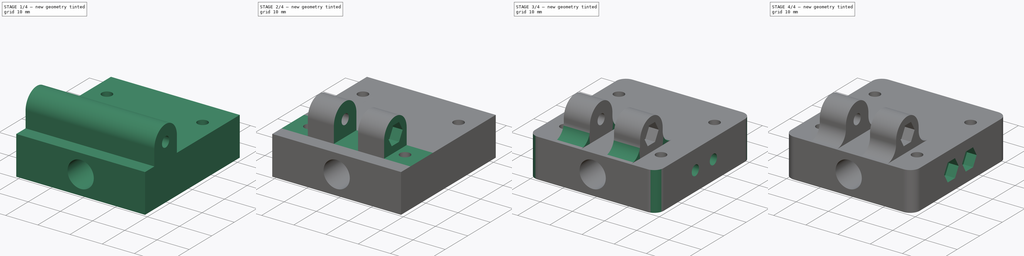
[diagram: build sequence overview — one tinted view per stage of 4, left to right]
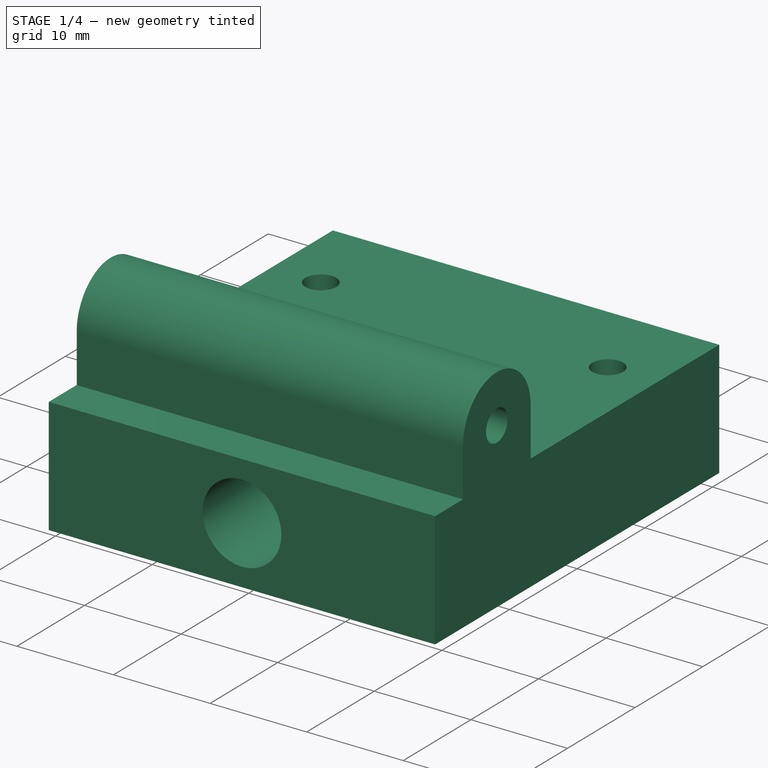
[diagram: stage 1 of 4 — iso view after this stage's code; geometry added in this stage tinted green]
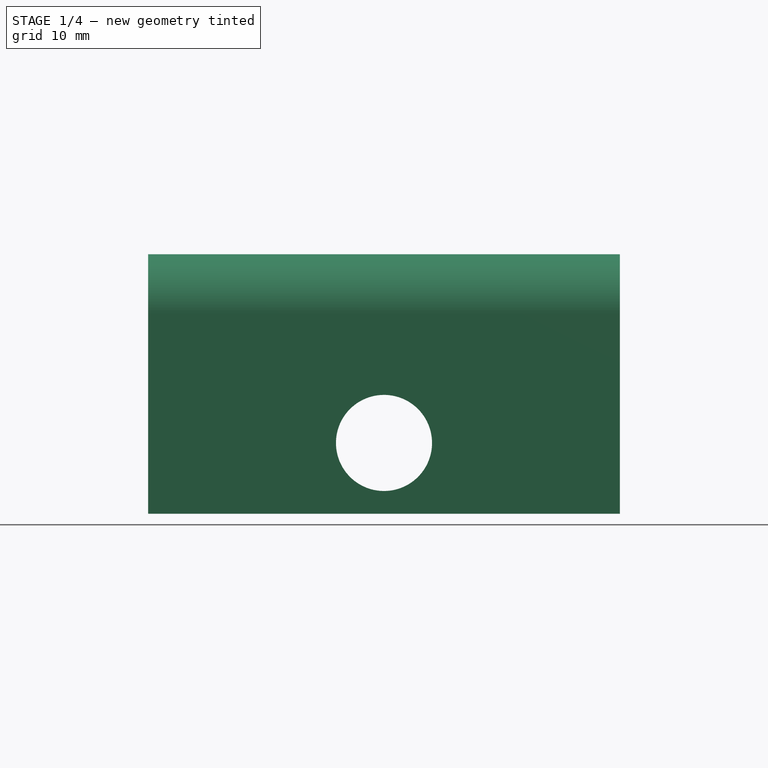
[diagram: stage 1 of 4 — front view after this stage's code; geometry added in this stage tinted green]
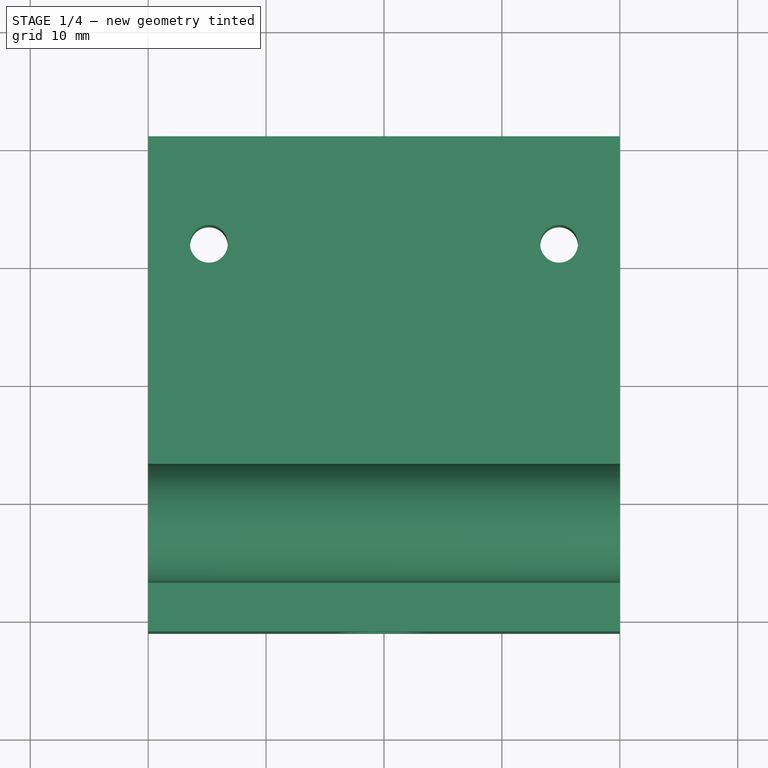
[diagram: stage 1 of 4 — top view after this stage's code; geometry added in this stage tinted green]
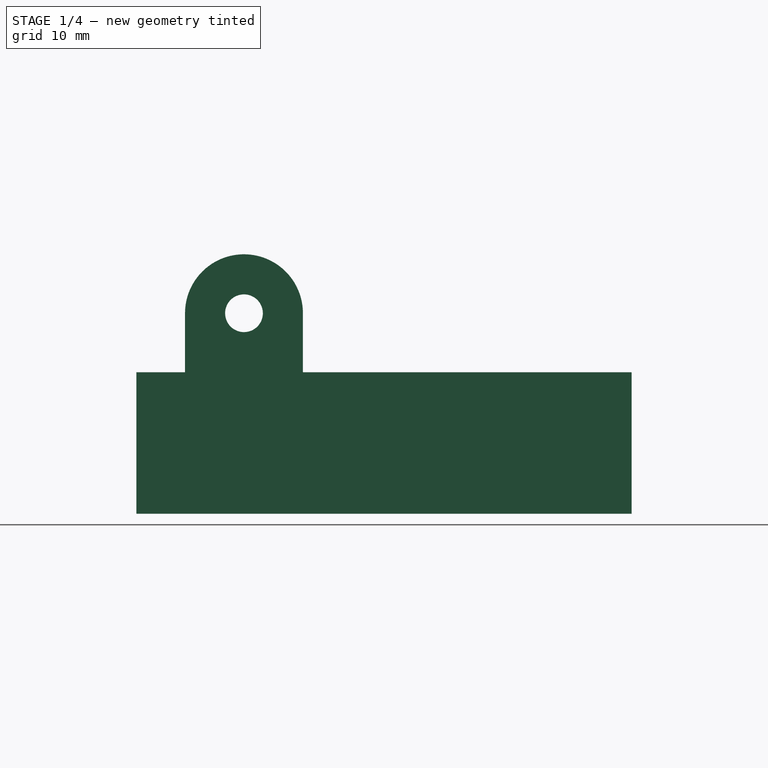
[diagram: stage 1 of 4 — right view after this stage's code; geometry added in this stage tinted green]
FCSTD DOCUMENT  (FreeCAD 0.20R29603 (Git))
Label: base-M8-bracket
License: All rights reserved
LicenseURL: http://en.wikipedia.org/wiki/All_rights_reserved
objects: Sketcher::SketchObject×10, PartDesign::Pocket×8, PartDesign::Pad×2, PartDesign::Fillet×2, PartDesign::Body×1
note: 35 computed .brp shape members not serialized (recipe doc carries the construction recipe); baked Part::Feature solids carry a one-line shape summary decoded from their .brp

FEATURE [Sketcher::SketchObject] Sketch
  FullyConstrained = true
  MapMode = 5
  Support = -> [XY_Plane]
  sketch-geometry (16):
    g0: LineSegment StartX=-20 StartY=21 StartZ=0 EndX=20 EndY=21 EndZ=0
    g1: LineSegment StartX=20 StartY=21 StartZ=0 EndX=20 EndY=-21 EndZ=0
    g2: LineSegment StartX=20 StartY=-21 StartZ=0 EndX=-20 EndY=-21 EndZ=0
    g3: LineSegment StartX=-20 StartY=-21 StartZ=0 EndX=-20 EndY=21 EndZ=0
    g4: LineSegment StartX=-14.85 StartY=11.875 StartZ=0 EndX=14.85 EndY=11.875 EndZ=0
    g5: LineSegment StartX=14.85 StartY=11.875 StartZ=0 EndX=14.85 EndY=-11.875 EndZ=0
    g6: LineSegment StartX=14.85 StartY=-11.875 StartZ=0 EndX=-14.85 EndY=-11.875 EndZ=0
    g7: LineSegment StartX=-14.85 StartY=-11.875 StartZ=0 EndX=-14.85 EndY=11.875 EndZ=0
    g8: LineSegment StartX=14.85 StartY=11.875 StartZ=0 EndX=-14.85 EndY=-11.875 EndZ=0
    g9: LineSegment StartX=-14.85 StartY=11.875 StartZ=0 EndX=14.85 EndY=-11.875 EndZ=0
    g10: LineSegment StartX=20 StartY=21 StartZ=0 EndX=-20 EndY=-21 EndZ=0
    g11: LineSegment StartX=-20 StartY=21 StartZ=0 EndX=20 EndY=-21 EndZ=0
    g12: Circle CenterX=-14.85 CenterY=11.875 CenterZ=0 NormalX=0 NormalY=0 NormalZ=1 AngleXU=0 Radius=1.6
    g13: Circle CenterX=14.85 CenterY=11.875 CenterZ=0 NormalX=0 NormalY=0 NormalZ=1 AngleXU=0 Radius=1.6
    g14: Circle CenterX=-14.85 CenterY=-11.875 CenterZ=0 NormalX=0 NormalY=0 NormalZ=1 AngleXU=0 Radius=1.6
    g15: Circle CenterX=14.85 CenterY=-11.875 CenterZ=0 NormalX=0 NormalY=0 NormalZ=1 AngleXU=0 Radius=1.6
  constraints (40):
    c: Coincident(g0,g1)
    c: Coincident(g1,g2)
    c: Coincident(g2,g3)
    c: Coincident(g3,g0)
    c: Horizontal(g0)
    c: Horizontal(g2)
    c: Vertical(g1)
    c: Vertical(g3)
    c: Coincident(g4,g5)
    c: Coincident(g5,g6)
    c: Coincident(g6,g7)
    c: Coincident(g7,g4)
    c: Horizontal(g4)
    c: Horizontal(g6)
    c: Vertical(g5)
    c: Vertical(g7)
    c: Coincident(g8,g4)
    c: Coincident(g8,g6)
    c: Coincident(g9,g4)
    c: Coincident(g9,g5)
    c: Coincident(g10,g0)
    c: Coincident(g10,g2)
    c: Coincident(g11,g0)
    c: Coincident(g11,g1)
    c: PointOnObject(g-1,g11)
    c: PointOnObject(g-1,g9)
    c: PointOnObject(g-1,g10)
    c: PointOnObject(g-1,g8)
    c: DistanceX(g0,g0) = 40
    c: DistanceY(g3,g3) = 42
    c: DistanceX(g4,g4) = 29.7
    c: DistanceY(g7,g7) = 23.75
    c: Coincident(g12,g4)
    c: Coincident(g13,g4)
    c: Coincident(g14,g6)
    c: Coincident(g15,g5)
    c: Equal(g15,g14)
    c: Equal(g14,g12)
    c: Equal(g12,g13)
    c: Diameter(g12) = 3.2
FEATURE [PartDesign::Pad] Pad
  Direction = (0,0,1)
  Length = 12
  Length2 = 10
  Profile = -> Sketch
  ReferenceAxis = -> Sketch [N_Axis]
  Type = 0
FEATURE [Sketcher::SketchObject] Sketch001
  ExternalGeometry = -> [Pad]
  FullyConstrained = true
  MapMode = 5
  Placement = pos=(0,-21,0) rot=(1,0,0;1.5708rad)
  Support = -> [Pad]
  sketch-geometry (3):
    g0: LineSegment StartX=20 StartY=12 StartZ=0 EndX=-20 EndY=0 EndZ=0
    g1: LineSegment StartX=-20 StartY=12 StartZ=0 EndX=20 EndY=0 EndZ=0
    g2: Circle CenterX=6e-16 CenterY=6 CenterZ=0 NormalX=0 NormalY=0 NormalZ=1 AngleXU=0 Radius=4.075
  constraints (9):
    c: DistanceX(g-3,g-4) = 40
    c: Coincident(g0,g-4)
    c: PointOnObject(g0,g-1)
    c: Coincident(g1,g-3)
    c: Coincident(g1,g-4)
    c: PointOnObject(g2,g0)
    c: PointOnObject(g2,g1)
    c: Diameter(g2) = 8.15
    c: PointOnObject(g0,g-3)
FEATURE [PartDesign::Pocket] Pocket
  BaseFeature = -> Pad
  Direction = (0,1,-2e-16)
  Length = 5
  Length2 = 5
  Profile = -> Sketch001
  ReferenceAxis = -> Sketch001 [N_Axis]
  Type = 1
FEATURE [Sketcher::SketchObject] Sketch003
  ExternalGeometry = -> [Pocket]
  FullyConstrained = true
  MapMode = 5
  Placement = pos=(-20,0,0) rot=(0.57735,-0.57735,-0.57735;2.0944rad)
  Support = -> [Pocket]
  sketch-geometry (5):
    g0: ArcOfCircle CenterX=11.875 CenterY=17 CenterZ=0 NormalX=0 NormalY=0 NormalZ=1 AngleXU=0 Radius=5 StartAngle=3e-16 EndAngle=3.14159
    g1: LineSegment StartX=6.875 StartY=17 StartZ=0 EndX=6.875 EndY=12 EndZ=0
    g2: LineSegment StartX=16.875 StartY=12 StartZ=0 EndX=16.875 EndY=17 EndZ=0
    g3: LineSegment StartX=16.875 StartY=12 StartZ=0 EndX=6.875 EndY=12 EndZ=0
    g4: Circle CenterX=11.875 CenterY=17 CenterZ=0 NormalX=0 NormalY=0 NormalZ=1 AngleXU=0 Radius=1.6
  constraints (13):
    c: Tangent(g0,g1) = -1.5708
    c: Tangent(g2,g0) = -1.5708
    c: Vertical(g1)
    c: Coincident(g3,g2)
    c: Coincident(g3,g1)
    c: Horizontal(g3)
    c: Tangent(g0,g3)
    c: Vertical(g2)
    c: Diameter(g0) = 10
    c: Vertical(g0,g-3)
    c: PointOnObject(g-3,g3)
    c: Coincident(g4,g0)
    c: Diameter(g4) = 3.2
FEATURE [PartDesign::Pad] Pad001
  BaseFeature = -> Pocket
  Direction = (-1,0,0)
  Length = 10
  Length2 = 10
  Profile = -> Sketch003
  ReferenceAxis = -> Sketch003 [N_Axis]
  Type = 3
  UpToFace = -> Pocket [Face5]
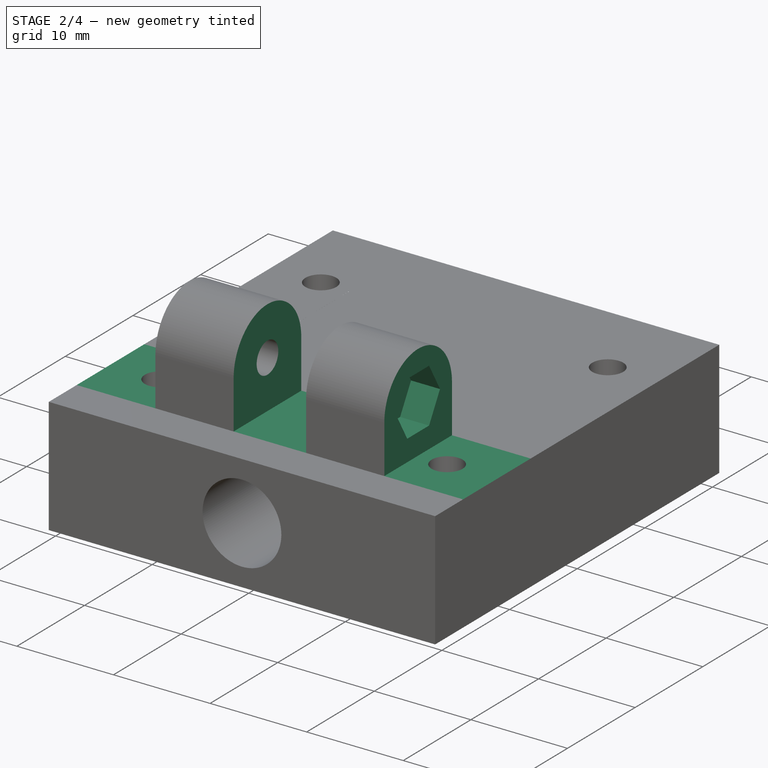
[diagram: stage 2 of 4 — iso view after this stage's code; geometry added in this stage tinted green]
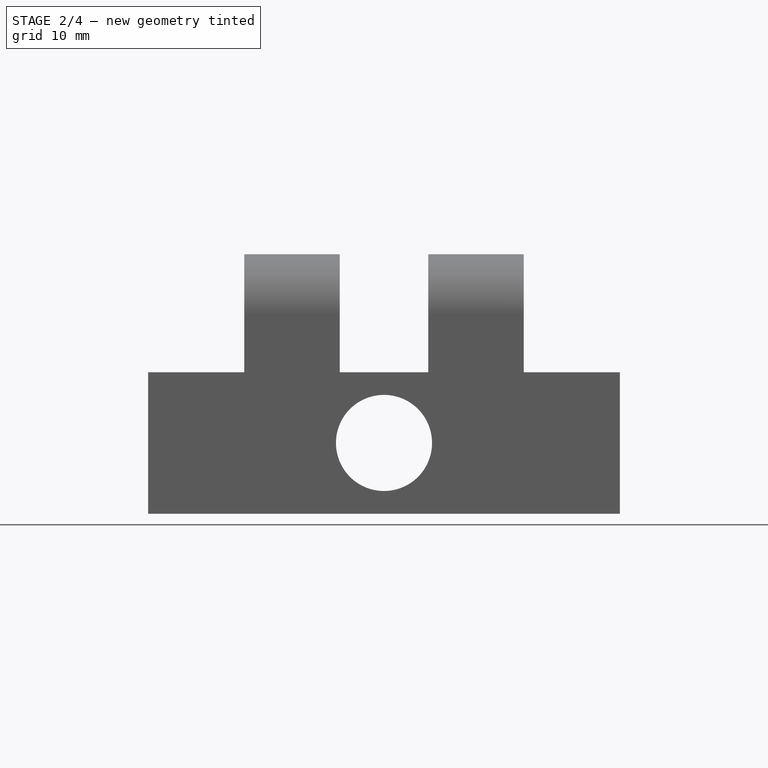
[diagram: stage 2 of 4 — front view after this stage's code; geometry added in this stage tinted green]
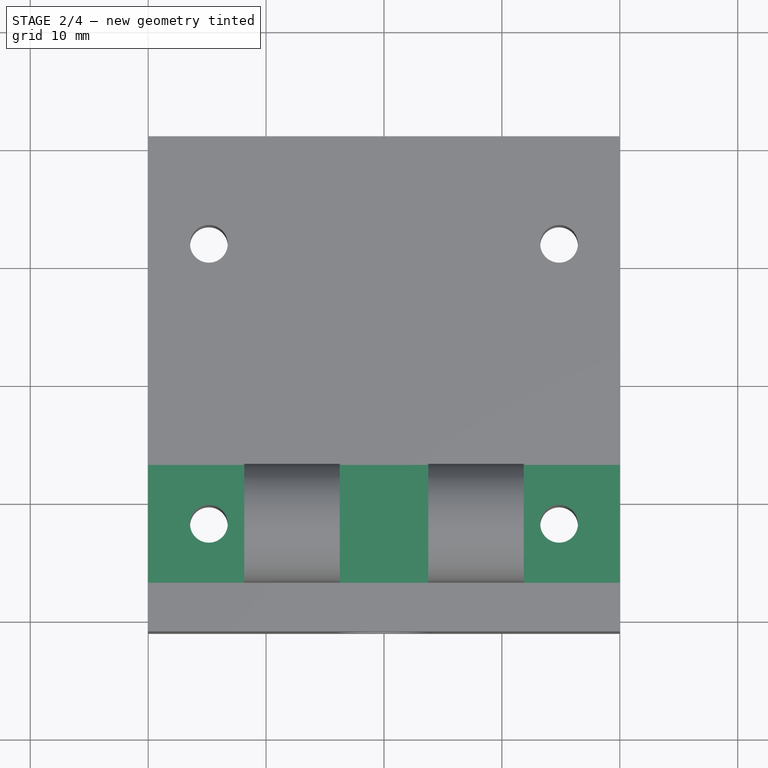
[diagram: stage 2 of 4 — top view after this stage's code; geometry added in this stage tinted green]
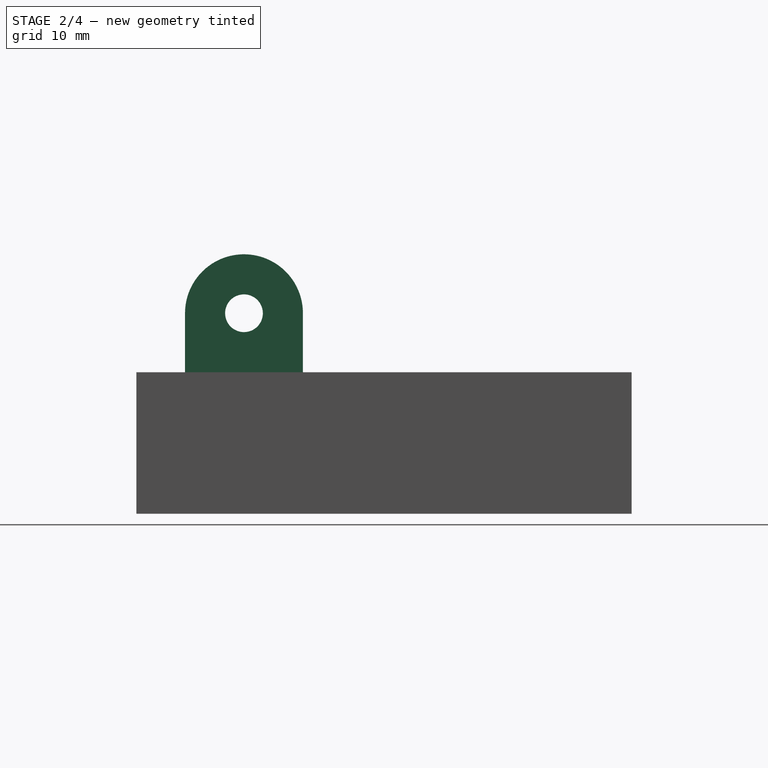
[diagram: stage 2 of 4 — right view after this stage's code; geometry added in this stage tinted green]
FEATURE [Sketcher::SketchObject] Sketch004
  ExternalGeometry = -> [Pad001]
  FullyConstrained = true
  MapMode = 5
  Placement = pos=(0,0,12) rot=(0,0,1;0rad)
  Support = -> [Pad001]
  sketch-geometry (15):
    g0: LineSegment StartX=-20 StartY=21 StartZ=0 EndX=-11.85 EndY=21 EndZ=0
    g1: LineSegment StartX=-11.85 StartY=21 StartZ=0 EndX=-11.85 EndY=-21 EndZ=0
    g2: LineSegment StartX=-11.85 StartY=-21 StartZ=0 EndX=-20 EndY=-21 EndZ=0
    g3: LineSegment StartX=-20 StartY=-21 StartZ=0 EndX=-20 EndY=21 EndZ=0
    g4: LineSegment StartX=20 StartY=21 StartZ=0 EndX=11.85 EndY=21 EndZ=0
    g5: LineSegment StartX=11.85 StartY=21 StartZ=0 EndX=11.85 EndY=-21 EndZ=0
    g6: LineSegment StartX=11.85 StartY=-21 StartZ=0 EndX=20 EndY=-21 EndZ=0
    g7: LineSegment StartX=20 StartY=-21 StartZ=0 EndX=20 EndY=21 EndZ=0
    g8: LineSegment StartX=-3.75 StartY=21 StartZ=0 EndX=3.75 EndY=21 EndZ=0
    g9: LineSegment StartX=3.75 StartY=21 StartZ=0 EndX=3.75 EndY=-21 EndZ=0
    g10: LineSegment StartX=3.75 StartY=-21 StartZ=0 EndX=-3.75 EndY=-21 EndZ=0
    g11: LineSegment StartX=-3.75 StartY=-21 StartZ=0 EndX=-3.75 EndY=21 EndZ=0
    g12: Circle CenterX=-14.85 CenterY=11.875 CenterZ=0 NormalX=0 NormalY=0 NormalZ=1 AngleXU=0 Radius=3
    g13: LineSegment StartX=-11.85 StartY=21 StartZ=0 EndX=-3.75 EndY=21 EndZ=0
    g14: LineSegment StartX=3.75 StartY=21 StartZ=0 EndX=11.85 EndY=21 EndZ=0
  constraints (40):
    c: Coincident(g0,g1)
    c: Coincident(g1,g2)
    c: Coincident(g2,g3)
    c: Coincident(g3,g0)
    c: Horizontal(g0)
    c: Horizontal(g2)
    c: Vertical(g1)
    c: Vertical(g3)
    c: Coincident(g0,g-3)
    c: Coincident(g4,g5)
    c: Coincident(g5,g6)
    c: Coincident(g6,g7)
    c: Coincident(g7,g4)
    c: Horizontal(g4)
    c: Horizontal(g6)
    c: Vertical(g5)
    c: Vertical(g7)
    c: Coincident(g4,g-4)
    c: Coincident(g8,g9)
    c: Coincident(g9,g10)
    c: Coincident(g10,g11)
    c: Coincident(g11,g8)
    c: Horizontal(g8)
    c: Horizontal(g10)
    c: Vertical(g9)
    c: Vertical(g11)
    c: Horizontal(g1,g-5)
    c: Horizontal(g-5,g5)
    c: Horizontal(g5,g9)
    c: Horizontal(g8,g0)
    c: Equal(g0,g4)
    c: Coincident(g12,g-7)
    c: Diameter(g12) = 6
    c: Tangent(g12,g1)
    c: Coincident(g13,g0)
    c: Coincident(g13,g8)
    c: Coincident(g14,g8)
    c: Coincident(g14,g4)
    c: Equal(g13,g14)
    c: DistanceX(g8,g8) = 7.5
FEATURE [PartDesign::Pocket] Pocket001
  BaseFeature = -> Pad001
  Direction = (0,0,-1)
  Length = 5
  Length2 = 5
  Profile = -> Sketch004
  ReferenceAxis = -> Sketch004 [N_Axis]
  Reversed = true
  Type = 1
FEATURE [Sketcher::SketchObject] Sketch005
  ExternalGeometry = -> [Pocket001]
  FullyConstrained = true
  MapMode = 5
  Placement = pos=(11.85,0,0) rot=(0.57735,0.57735,0.57735;2.0944rad)
  Support = -> [Pocket001]
  sketch-geometry (7):
    g0: LineSegment StartX=-10.2584 StartY=19.8 StartZ=0 EndX=-13.4916 EndY=19.8 EndZ=0
    g1: LineSegment StartX=-13.4916 StartY=19.8 StartZ=0 EndX=-15.1082 EndY=17 EndZ=0
    g2: LineSegment StartX=-15.1082 StartY=17 StartZ=0 EndX=-13.4916 EndY=14.2 EndZ=0
    g3: LineSegment StartX=-13.4916 StartY=14.2 StartZ=0 EndX=-10.2584 EndY=14.2 EndZ=0
    g4: LineSegment StartX=-10.2584 StartY=14.2 StartZ=0 EndX=-8.64184 EndY=17 EndZ=0
    g5: LineSegment StartX=-8.64184 StartY=17 StartZ=0 EndX=-10.2584 EndY=19.8 EndZ=0
    g6: Circle CenterX=-11.875 CenterY=17 CenterZ=0 NormalX=0 NormalY=0 NormalZ=1 AngleXU=0 Radius=3.23316
  constraints (16):
    c: Coincident(g0,g1)
    c: Coincident(g1,g2)
    c: Coincident(g2,g3)
    c: Coincident(g3,g4)
    c: Coincident(g4,g5)
    c: Coincident(g5,g0)
    c: Equal(g0, g1-g5) x5
    c: PointOnObject(g0,g6)
    c: PointOnObject(g1,g6)
    c: PointOnObject(g2,g6)
    c: PointOnObject(g3,g6)
    c: PointOnObject(g4,g6)
    c: PointOnObject(g5,g6)
    c: Coincident(g6,g-3)
    c: Horizontal(g0)
    c: DistanceY(g2,g0) = 5.6
FEATURE [PartDesign::Pocket] Pocket002
  BaseFeature = -> Pocket001
  Direction = (-1,0,0)
  Length = 3
  Length2 = 5
  Profile = -> Sketch005
  ReferenceAxis = -> Sketch005 [N_Axis]
  Type = 0
FEATURE [Sketcher::SketchObject] Sketch006
  ExternalGeometry = -> [Pocket002]
  FullyConstrained = true
  MapMode = 5
  Placement = pos=(-11.85,0,0) rot=(0.57735,-0.57735,-0.57735;2.0944rad)
  Support = -> [Pocket002]
  sketch-geometry (7):
    g0: LineSegment StartX=13.4916 StartY=19.8 StartZ=0 EndX=10.2584 EndY=19.8 EndZ=0
    g1: LineSegment StartX=10.2584 StartY=19.8 StartZ=0 EndX=8.64184 EndY=17 EndZ=0
    g2: LineSegment StartX=8.64184 StartY=17 StartZ=0 EndX=10.2584 EndY=14.2 EndZ=0
    g3: LineSegment StartX=10.2584 StartY=14.2 StartZ=0 EndX=13.4916 EndY=14.2 EndZ=0
    g4: LineSegment StartX=13.4916 StartY=14.2 StartZ=0 EndX=15.1082 EndY=17 EndZ=0
    g5: LineSegment StartX=15.1082 StartY=17 StartZ=0 EndX=13.4916 EndY=19.8 EndZ=0
    g6: Circle CenterX=11.875 CenterY=17 CenterZ=0 NormalX=0 NormalY=0 NormalZ=1 AngleXU=0 Radius=3.23316
  constraints (15):
    c: Coincident(g0,g1)
    c: Coincident(g1,g2)
    c: Coincident(g2,g3)
    c: Coincident(g3,g4)
    c: Coincident(g4,g5)
    c: Coincident(g5,g0)
    c: Equal(g0, g1-g5) x5
    c: PointOnObject(g0,g6)
    c: PointOnObject(g1,g6)
    c: PointOnObject(g2,g6)
    c: PointOnObject(g3,g6)
    c: PointOnObject(g4,g6)
    c: PointOnObject(g5,g6)
    c: Coincident(g6,g-3)
    c: Coincident(g5,g-4)
FEATURE [PartDesign::Pocket] Pocket003
  BaseFeature = -> Pocket002
  Direction = (1,0,0)
  Length = 3
  Length2 = 5
  Profile = -> Sketch006
  ReferenceAxis = -> Sketch006 [N_Axis]
  Type = 0
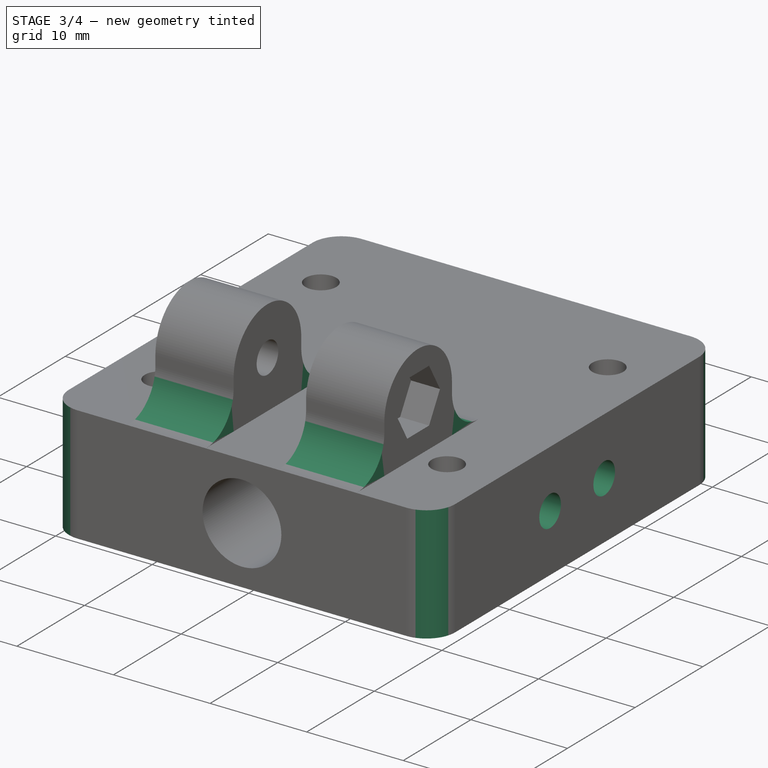
[diagram: stage 3 of 4 — iso view after this stage's code; geometry added in this stage tinted green]
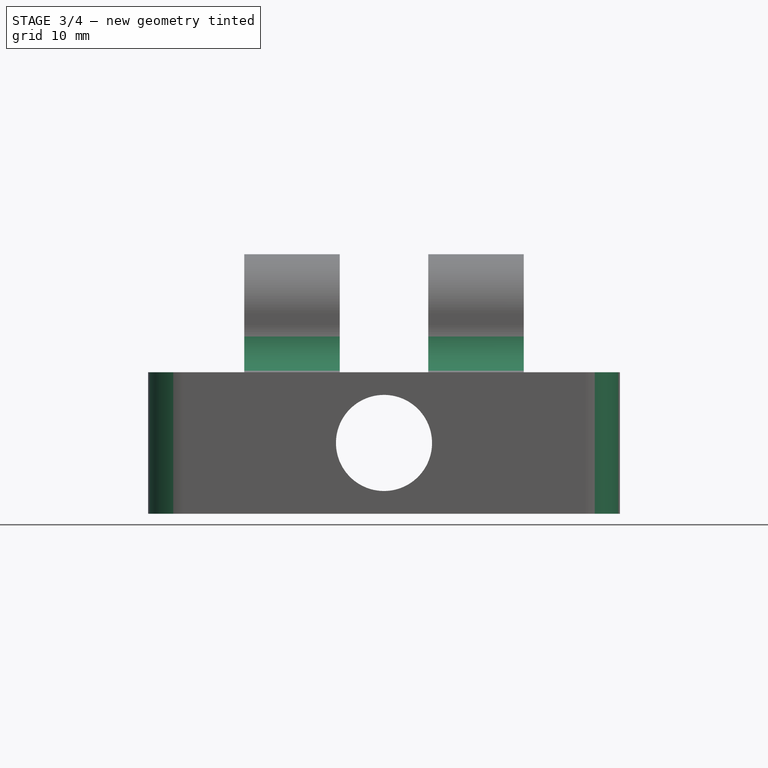
[diagram: stage 3 of 4 — front view after this stage's code; geometry added in this stage tinted green]
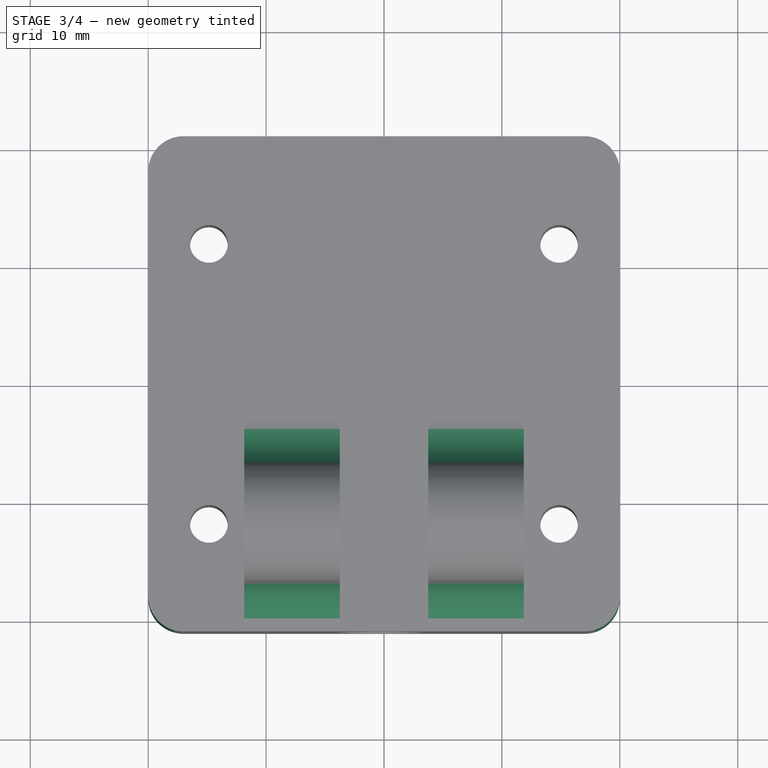
[diagram: stage 3 of 4 — top view after this stage's code; geometry added in this stage tinted green]
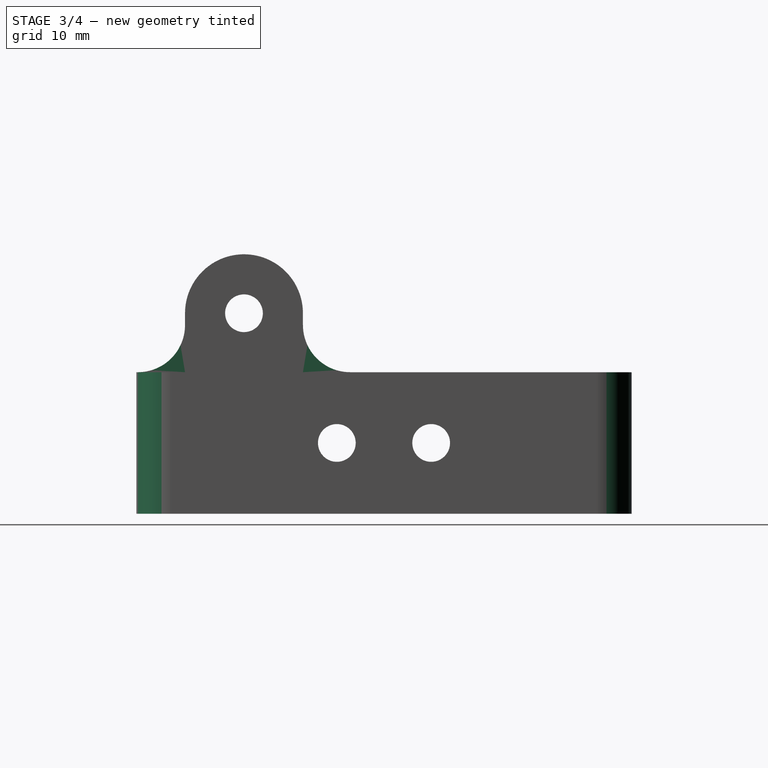
[diagram: stage 3 of 4 — right view after this stage's code; geometry added in this stage tinted green]
FEATURE [PartDesign::Fillet] Fillet
  Base = -> Pocket003 [Edge65,Edge68,Edge29,Edge25]
  BaseFeature = -> Pocket003
  Radius = 4
  SupportTransform = false
  UseAllEdges = false
FEATURE [PartDesign::Fillet] Fillet001
  Base = -> Fillet [Edge84,Edge66,Edge30,Edge26]
  BaseFeature = -> Fillet
  Radius = 3
  SupportTransform = false
  UseAllEdges = false
FEATURE [Sketcher::SketchObject] Sketch008
  ExternalGeometry = -> [Fillet001]
  FullyConstrained = true
  MapMode = 5
  Placement = pos=(-20,0,0) rot=(0.57735,-0.57735,-0.57735;2.0944rad)
  Support = -> [Fillet001]
  sketch-geometry (4):
    g0: LineSegment StartX=0 StartY=6 StartZ=0 EndX=-4 EndY=6 EndZ=0
    g1: LineSegment StartX=4 StartY=6 StartZ=0 EndX=0 EndY=6 EndZ=0
    g2: Circle CenterX=-4 CenterY=6 CenterZ=0 NormalX=0 NormalY=0 NormalZ=1 AngleXU=0 Radius=1.6
    g3: Circle CenterX=4 CenterY=6 CenterZ=0 NormalX=0 NormalY=0 NormalZ=1 AngleXU=0 Radius=1.6
  constraints (11):
    c: Coincident(g1,g0)
    c: PointOnObject(g0,g-2)
    c: PointOnObject(g0,g-3)
    c: PointOnObject(g1,g-3)
    c: PointOnObject(g0,g-3)
    c: Equal(g0,g1)
    c: DistanceX(g0,g1) = 8
    c: Coincident(g2,g0)
    c: Equal(g3,g2)
    c: Diameter(g2) = 3.2
    c: Coincident(g3,g1)
FEATURE [PartDesign::Pocket] Pocket004
  BaseFeature = -> Fillet001
  Direction = (1,0,0)
  Length = 5
  Length2 = 5
  Profile = -> Sketch008
  ReferenceAxis = -> Sketch008 [N_Axis]
  Type = 1
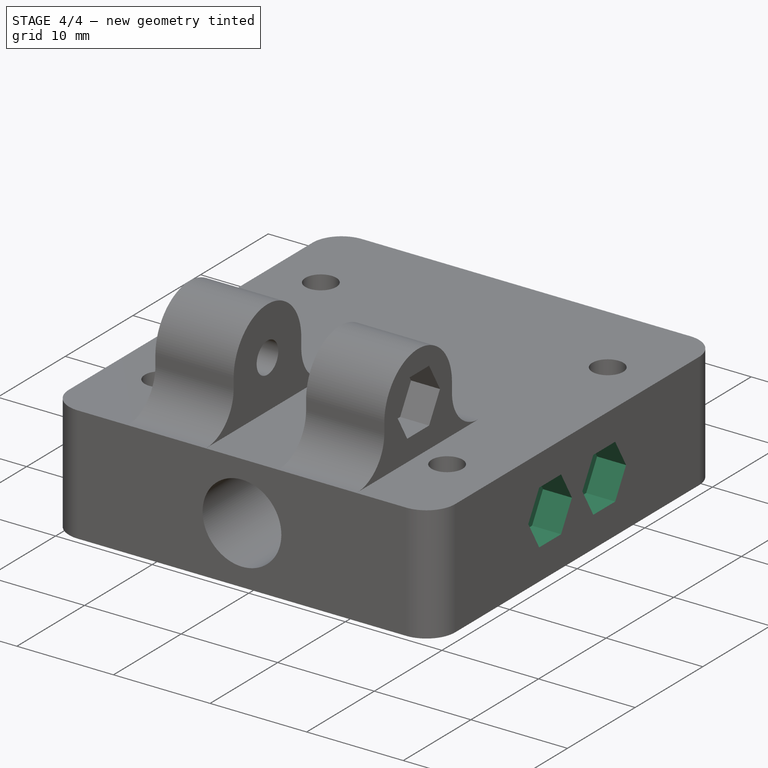
[diagram: stage 4 of 4 — iso view after this stage's code; geometry added in this stage tinted green]
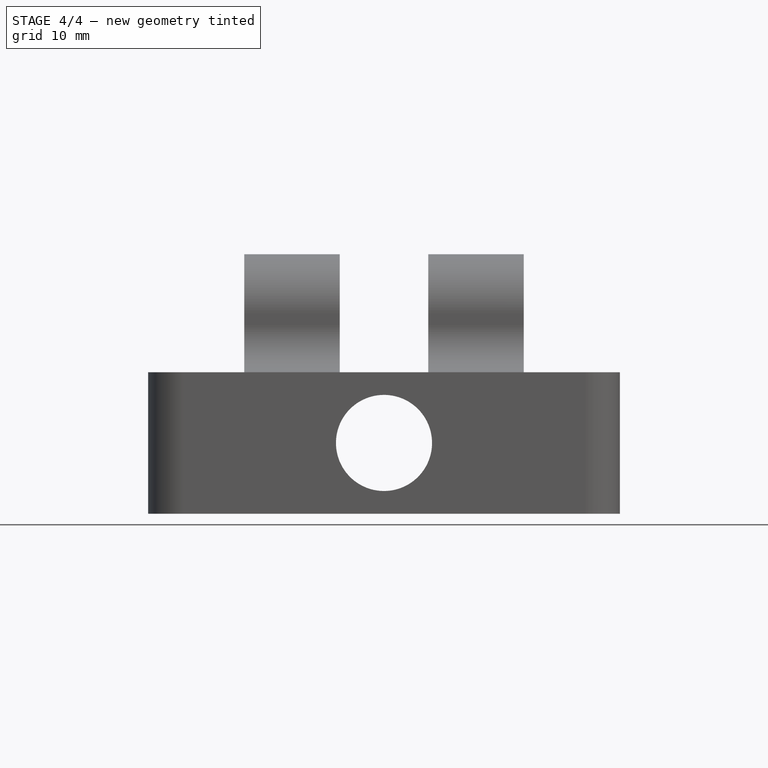
[diagram: stage 4 of 4 — front view after this stage's code; geometry added in this stage tinted green]
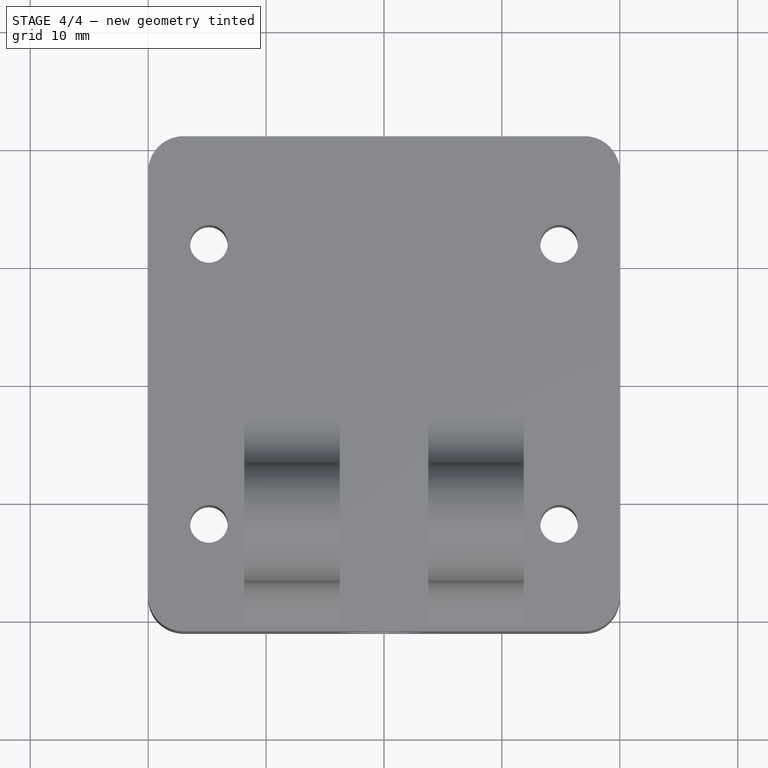
[diagram: stage 4 of 4 — top view after this stage's code; geometry added in this stage tinted green]
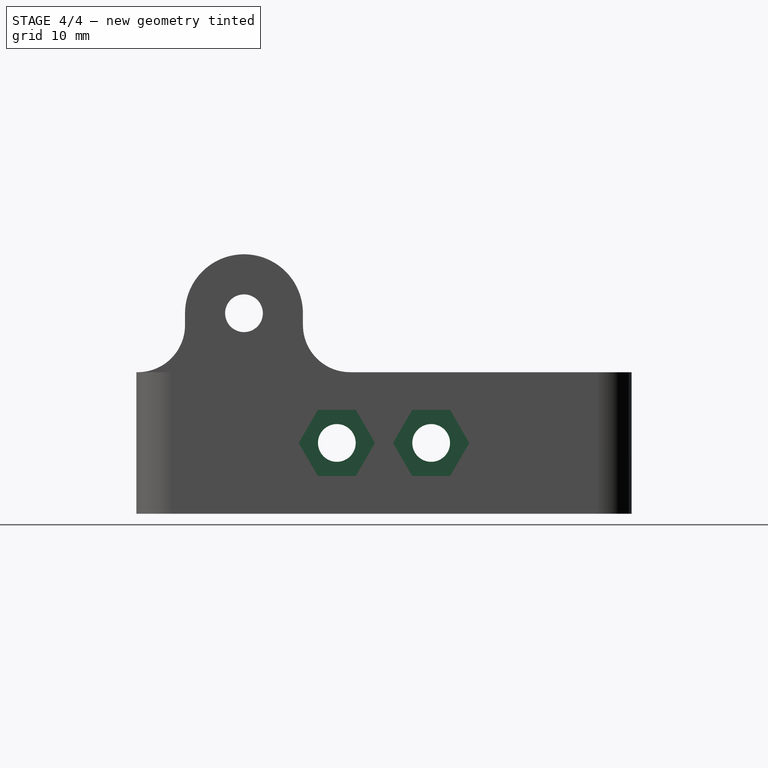
[diagram: stage 4 of 4 — right view after this stage's code; geometry added in this stage tinted green]
FEATURE [Sketcher::SketchObject] Sketch009
  ExternalGeometry = -> [Pocket004]
  FullyConstrained = true
  MapMode = 5
  Placement = pos=(-20,0,0) rot=(0.57735,-0.57735,-0.57735;2.0944rad)
  Support = -> [Pocket004]
  sketch-geometry (14):
    g0: LineSegment StartX=-2.38342 StartY=8.8 StartZ=0 EndX=-5.61658 EndY=8.8 EndZ=0
    g1: LineSegment StartX=-5.61658 StartY=8.8 StartZ=0 EndX=-7.23316 EndY=6 EndZ=0
    g2: LineSegment StartX=-7.23316 StartY=6 StartZ=0 EndX=-5.61658 EndY=3.2 EndZ=0
    g3: LineSegment StartX=-5.61658 StartY=3.2 StartZ=0 EndX=-2.38342 EndY=3.2 EndZ=0
    g4: LineSegment StartX=-2.38342 StartY=3.2 StartZ=0 EndX=-0.766838 EndY=6 EndZ=0
    g5: LineSegment StartX=-0.766838 StartY=6 StartZ=0 EndX=-2.38342 EndY=8.8 EndZ=0
    g6: Circle CenterX=-4 CenterY=6 CenterZ=0 NormalX=0 NormalY=0 NormalZ=1 AngleXU=0 Radius=3.23316
    g7: LineSegment StartX=5.61658 StartY=8.8 StartZ=0 EndX=2.38342 EndY=8.8 EndZ=0
    g8: LineSegment StartX=2.38342 StartY=8.8 StartZ=0 EndX=0.766838 EndY=6 EndZ=0
    g9: LineSegment StartX=0.766838 StartY=6 StartZ=0 EndX=2.38342 EndY=3.2 EndZ=0
    g10: LineSegment StartX=2.38342 StartY=3.2 StartZ=0 EndX=5.61658 EndY=3.2 EndZ=0
    g11: LineSegment StartX=5.61658 StartY=3.2 StartZ=0 EndX=7.23316 EndY=6 EndZ=0
    g12: LineSegment StartX=7.23316 StartY=6 StartZ=0 EndX=5.61658 EndY=8.8 EndZ=0
    g13: Circle CenterX=4 CenterY=6 CenterZ=0 NormalX=0 NormalY=0 NormalZ=1 AngleXU=0 Radius=3.23316
  constraints (32):
    c: Coincident(g0,g1)
    c: Coincident(g1,g2)
    c: Coincident(g2,g3)
    c: Coincident(g3,g4)
    c: Coincident(g4,g5)
    c: Coincident(g5,g0)
    c: Equal(g0, g1-g5) x5
    c: PointOnObject(g0,g6)
    c: PointOnObject(g1,g6)
    c: PointOnObject(g2,g6)
    c: PointOnObject(g3,g6)
    c: PointOnObject(g4,g6)
    c: PointOnObject(g5,g6)
    c: Coincident(g6,g-3)
    c: Coincident(g7,g8)
    c: Coincident(g8,g9)
    c: Coincident(g9,g10)
    c: Coincident(g10,g11)
    c: Coincident(g11,g12)
    c: Coincident(g12,g7)
    c: Equal(g7, g8-g12) x5
    c: PointOnObject(g7,g13)
    c: PointOnObject(g8,g13)
    c: PointOnObject(g9,g13)
    c: PointOnObject(g10,g13)
    c: PointOnObject(g11,g13)
    c: PointOnObject(g12,g13)
    c: Coincident(g13,g-4)
    c: Equal(g13,g6)
    c: Horizontal(g0)
    c: Horizontal(g7)
    c: DistanceY(g2,g0) = 5.6
FEATURE [PartDesign::Pocket] Pocket005
  BaseFeature = -> Pocket004
  Direction = (1,0,0)
  Length = 3
  Length2 = 5
  Profile = -> Sketch009
  ReferenceAxis = -> Sketch009 [N_Axis]
  Type = 0
FEATURE [Sketcher::SketchObject] Sketch010
  ExternalGeometry = -> [Pocket005]
  FullyConstrained = true
  MapMode = 5
  Placement = pos=(20,0,0) rot=(0.57735,0.57735,0.57735;2.0944rad)
  Support = -> [Pocket005]
  sketch-geometry (14):
    g0: LineSegment StartX=-2.38342 StartY=8.8 StartZ=0 EndX=-5.61658 EndY=8.8 EndZ=0
    g1: LineSegment StartX=-5.61658 StartY=8.8 StartZ=0 EndX=-7.23316 EndY=6 EndZ=0
    g2: LineSegment StartX=-7.23316 StartY=6 StartZ=0 EndX=-5.61658 EndY=3.2 EndZ=0
    g3: LineSegment StartX=-5.61658 StartY=3.2 StartZ=0 EndX=-2.38342 EndY=3.2 EndZ=0
    g4: LineSegment StartX=-2.38342 StartY=3.2 StartZ=0 EndX=-0.766838 EndY=6 EndZ=0
    g5: LineSegment StartX=-0.766838 StartY=6 StartZ=0 EndX=-2.38342 EndY=8.8 EndZ=0
    g6: Circle CenterX=-4 CenterY=6 CenterZ=0 NormalX=0 NormalY=0 NormalZ=1 AngleXU=0 Radius=3.23316
    g7: LineSegment StartX=5.61658 StartY=8.8 StartZ=0 EndX=2.38342 EndY=8.8 EndZ=0
    g8: LineSegment StartX=2.38342 StartY=8.8 StartZ=0 EndX=0.766838 EndY=6 EndZ=0
    g9: LineSegment StartX=0.766838 StartY=6 StartZ=0 EndX=2.38342 EndY=3.2 EndZ=0
    g10: LineSegment StartX=2.38342 StartY=3.2 StartZ=0 EndX=5.61658 EndY=3.2 EndZ=0
    g11: LineSegment StartX=5.61658 StartY=3.2 StartZ=0 EndX=7.23316 EndY=6 EndZ=0
    g12: LineSegment StartX=7.23316 StartY=6 StartZ=0 EndX=5.61658 EndY=8.8 EndZ=0
    g13: Circle CenterX=4 CenterY=6 CenterZ=0 NormalX=0 NormalY=0 NormalZ=1 AngleXU=0 Radius=3.23316
  constraints (30):
    c: Coincident(g0,g1)
    c: Coincident(g1,g2)
    c: Coincident(g2,g3)
    c: Coincident(g3,g4)
    c: Coincident(g4,g5)
    c: Coincident(g5,g0)
    c: Equal(g0, g1-g5) x5
    c: PointOnObject(g0,g6)
    c: PointOnObject(g1,g6)
    c: PointOnObject(g2,g6)
    c: PointOnObject(g3,g6)
    c: PointOnObject(g4,g6)
    c: PointOnObject(g5,g6)
    c: Coincident(g6,g-3)
    c: Coincident(g5,g-5)
    c: Coincident(g7,g8)
    c: Coincident(g8,g9)
    c: Coincident(g9,g10)
    c: Coincident(g10,g11)
    c: Coincident(g11,g12)
    c: Coincident(g12,g7)
    c: Equal(g7, g8-g12) x5
    c: PointOnObject(g7,g13)
    c: PointOnObject(g8,g13)
    c: PointOnObject(g9,g13)
    c: PointOnObject(g10,g13)
    c: PointOnObject(g11,g13)
    c: PointOnObject(g12,g13)
    c: Coincident(g13,g-4)
    c: Coincident(g12,g-6)
FEATURE [PartDesign::Pocket] Pocket006
  BaseFeature = -> Pocket005
  Direction = (-1,0,0)
  Length = 3
  Length2 = 5
  Profile = -> Sketch010
  ReferenceAxis = -> Sketch010 [N_Axis]
  Type = 0
FEATURE [PartDesign::Pocket] Pocket007
  BaseFeature = -> Pocket006
  Direction = (1,0,0)
  Length = 5
  Length2 = 5
  Profile = -> Sketch008
  ReferenceAxis = -> Sketch008 [N_Axis]
  Type = 1
FEATURE [Sketcher::SketchObject] Sketch012
  ExternalGeometry = -> [Pocket007]
  FullyConstrained = true
  MapMode = 5
  Placement = pos=(-20,0,0) rot=(0.57735,-0.57735,-0.57735;2.0944rad)
  Support = -> [Pocket007]
  sketch-geometry (3):
    g0: LineSegment StartX=4 StartY=6 StartZ=0 EndX=11.875 EndY=6 EndZ=0
    g1: LineSegment StartX=11.875 StartY=17 StartZ=0 EndX=11.875 EndY=6 EndZ=0
    g2: Circle CenterX=11.875 CenterY=6 CenterZ=0 NormalX=0 NormalY=0 NormalZ=1 AngleXU=0 Radius=1.6
  constraints (13):
    c: DistanceX(g-5,g-4) = 8
    c: DistanceY(g-7,g-6) = 5.6
    c: DistanceX(g-4,g-3) = 7.875
    c: Coincident(g0,g-4)
    c: Coincident(g1,g-3)
    c: Coincident(g0,g1)
    c: Horizontal(g0)
    c: Vertical(g1)
    c: Coincident(g2,g0)
    c: Equal(g2,g-4)
    c: DistanceY(g2,g1) = 11
    c: DistanceY(g-8,g-8) = 12
    c: DistanceX(g0,g-9) = 17
FEATURE [PartDesign::Body] Body
  Group = -> [Sketch,Pad,Sketch001,Pocket,Sketch003,Pad001,Sketch004,Pocket001,Sketch005,Pocket002,Sketch006,Pocket003,Fillet,Fillet001,Sketch008,Pocket004,Sketch009,Pocket005,Sketch010,Pocket006,Pocket007,Sketch012]
  Origin = -> Origin
  Tip = -> Pocket007
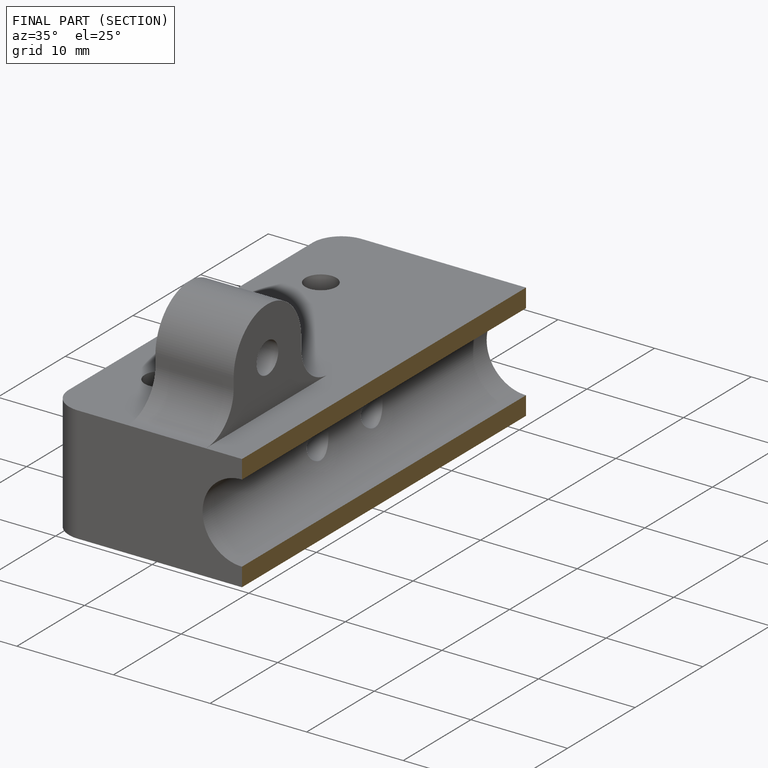
[diagram: finished part — half-section view (interior)]
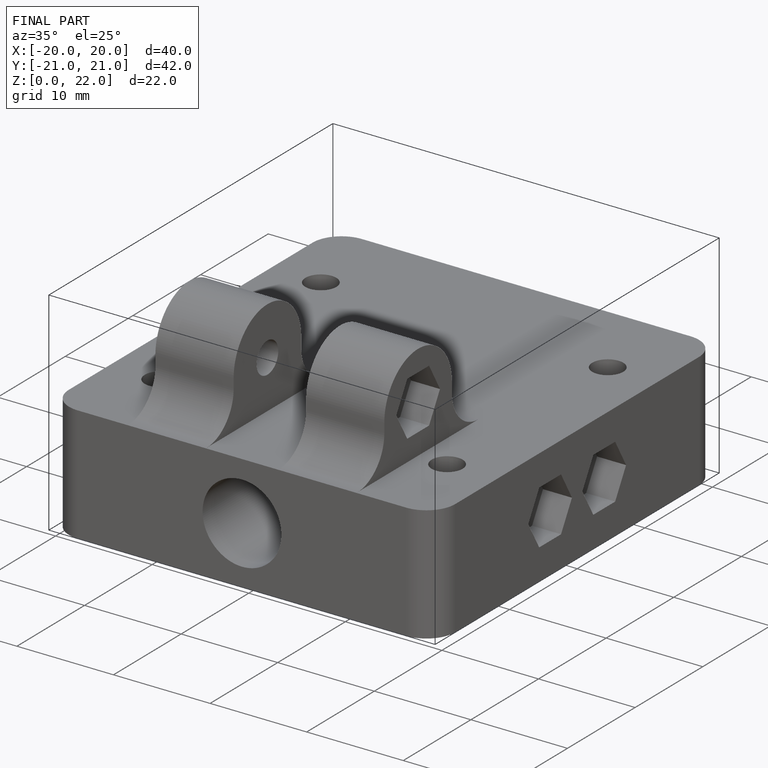
[diagram: finished part — iso view with bounding-box wireframe]
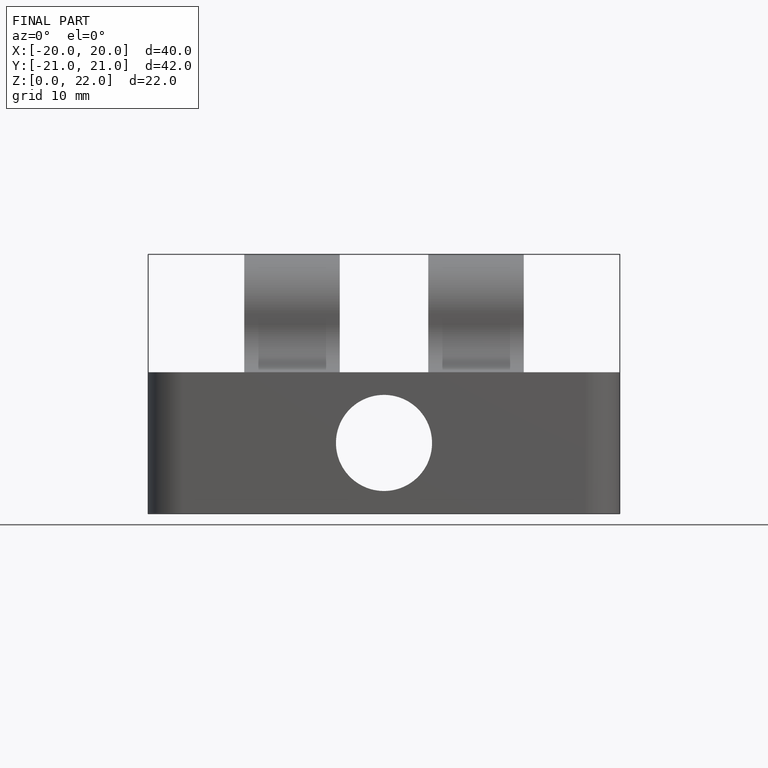
[diagram: finished part — front view with bounding-box wireframe]
